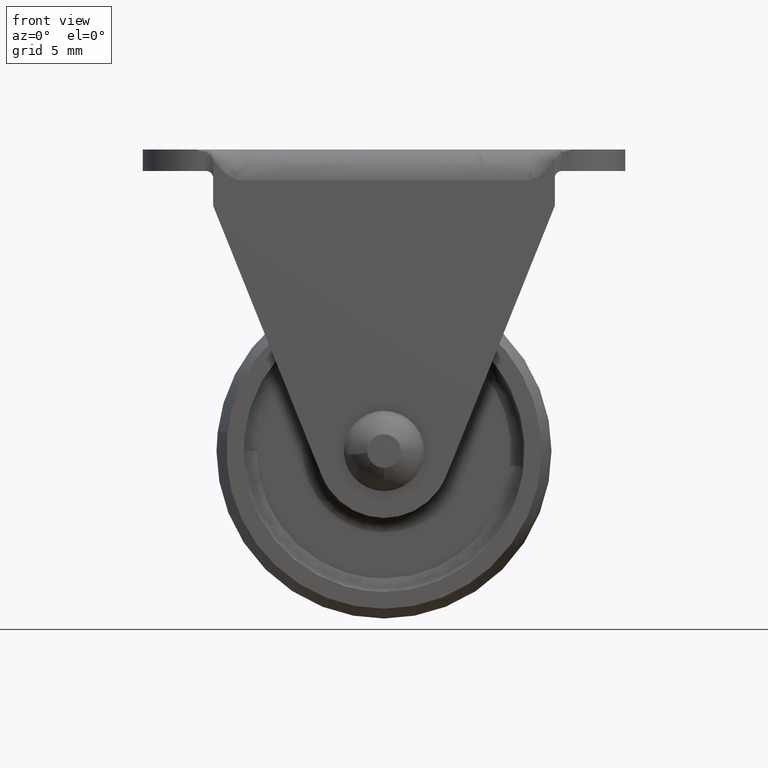
[diagram: clean part render]
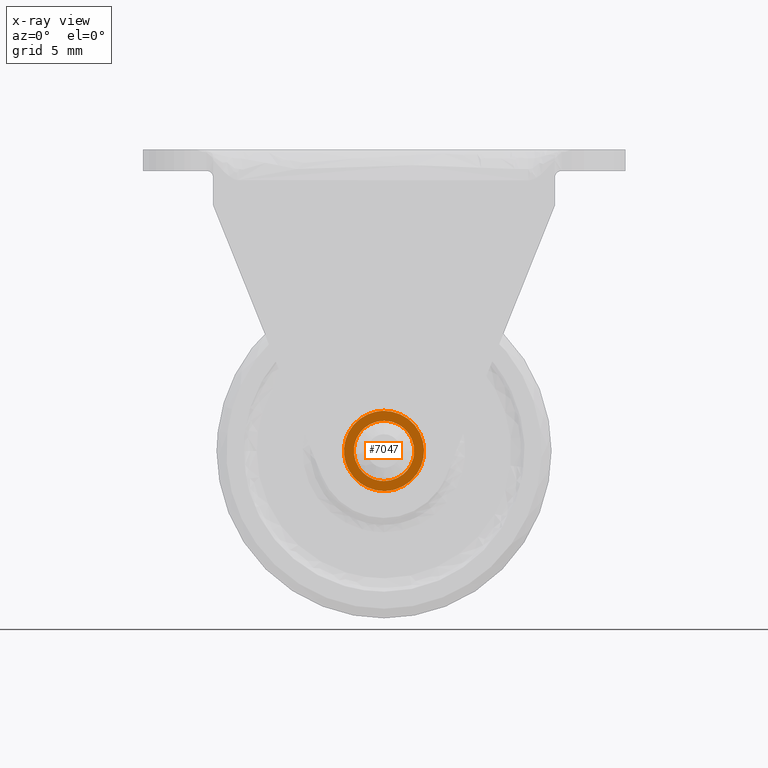
[diagram: x-ray — body ghosted, one internal face saturated and labeled with its STEP entity id]
A machine part, front view, then the same camera in x-ray: the body is ghosted and one INTERNAL B-rep face — a face not visible from any outside direction — is saturated and labeled: STEP entity #7047.
In plain terms, the highlighted face is a freeform B-spline surface patch.
Its self-contained STEP definition (entity closure, byte-faithful):
#6360=CARTESIAN_POINT('',(-2.234271434310410,-9.150002000000001,0.265577028043656));
#6361=VERTEX_POINT('',#6360);
#6362=CARTESIAN_POINT('',(0.0,-9.150002000000001,-2.250000000000000));
#6363=VERTEX_POINT('',#6362);
#6364=CARTESIAN_POINT('',(-2.234271434310410,-9.150002000000001,0.265577028043656));
#6365=CARTESIAN_POINT('',(-2.250000000000000,-9.150002000000001,0.133254269283445));
#6366=CARTESIAN_POINT('',(-2.250000000000000,-9.150002000000001,0.0));
#6367=CARTESIAN_POINT('',(-2.250000000000000,-9.150002000000001,-2.250000000000000));
#6368=CARTESIAN_POINT('',(0.0,-9.150002000000001,-2.250000000000000));
#6376=(BOUNDED_CURVE()B_SPLINE_CURVE(2,(#6364,#6365,#6366,#6367,#6368),.UNSPECIFIED.,.F.,.U.)B_SPLINE_CURVE_WITH_KNOTS((3,2,3),(0.229562473505667,0.250000000000000,0.500000000000000),.UNSPECIFIED.)CURVE()GEOMETRIC_REPRESENTATION_ITEM()RATIONAL_B_SPLINE_CURVE((0.956026754168330,0.976055948321959,1.0,0.707106781186547,1.0))REPRESENTATION_ITEM(''));
#6377=EDGE_CURVE('',#6361,#6363,#6376,.T.);
#6418=CARTESIAN_POINT('',(2.245803418097605,-9.150002000000008,-0.137357224990687));
#6419=VERTEX_POINT('',#6418);
#6425=CARTESIAN_POINT('',(0.0,-9.150002000000001,-2.250000000000000));
#6426=CARTESIAN_POINT('',(2.116590528567082,-9.150002000000002,-2.250000000000000));
#6427=CARTESIAN_POINT('',(2.245803418097605,-9.150002000000008,-0.137357224990687));
#6435=(BOUNDED_CURVE()B_SPLINE_CURVE(2,(#6425,#6426,#6427),.UNSPECIFIED.,.F.,.U.)B_SPLINE_CURVE_WITH_KNOTS((3,3),(0.500000000000000,0.739333115055519),.UNSPECIFIED.)CURVE()GEOMETRIC_REPRESENTATION_ITEM()RATIONAL_B_SPLINE_CURVE((1.0,0.719603814250955,0.976072369181948))REPRESENTATION_ITEM(''));
#6436=EDGE_CURVE('',#6363,#6419,#6435,.T.);
#6459=CARTESIAN_POINT('',(0.0,-9.150002000000001,2.250000000000000));
#6460=VERTEX_POINT('',#6459);
#6461=CARTESIAN_POINT('',(0.0,-9.150002000000001,2.250000000000000));
#6462=CARTESIAN_POINT('',(-1.998392683271773,-9.150002000000001,2.250000000000000));
#6463=CARTESIAN_POINT('',(-2.234271434310410,-9.150002000000001,0.265577028043656));
#6471=(BOUNDED_CURVE()B_SPLINE_CURVE(2,(#6461,#6462,#6463),.UNSPECIFIED.,.F.,.U.)B_SPLINE_CURVE_WITH_KNOTS((3,3),(0.0,0.229562473505667),.UNSPECIFIED.)CURVE()GEOMETRIC_REPRESENTATION_ITEM()RATIONAL_B_SPLINE_CURVE((1.0,0.731050832864589,0.956026754168330))REPRESENTATION_ITEM(''));
#6472=EDGE_CURVE('',#6460,#6361,#6471,.T.);
#6474=CARTESIAN_POINT('',(2.245803418097605,-9.150002000000008,-0.137357224990687));
#6475=CARTESIAN_POINT('',(2.250000000000000,-9.150002000000001,-0.068742720152093));
#6476=CARTESIAN_POINT('',(2.250000000000000,-9.150002000000001,0.0));
#6477=CARTESIAN_POINT('',(2.250000000000000,-9.150002000000001,2.250000000000000));
#6478=CARTESIAN_POINT('',(0.0,-9.150002000000001,2.250000000000000));
#6486=(BOUNDED_CURVE()B_SPLINE_CURVE(2,(#6474,#6475,#6476,#6477,#6478),.UNSPECIFIED.,.F.,.U.)B_SPLINE_CURVE_WITH_KNOTS((3,2,3),(0.739333115055519,0.750000000000000,1.0),.UNSPECIFIED.)CURVE()GEOMETRIC_REPRESENTATION_ITEM()RATIONAL_B_SPLINE_CURVE((0.976072369181948,0.987502966935592,1.0,0.707106781186547,1.0))REPRESENTATION_ITEM(''));
#6487=EDGE_CURVE('',#6419,#6460,#6486,.T.);
#6766=CARTESIAN_POINT('',(0.0,-9.150002000006714,-2.991828621563486));
#6767=VERTEX_POINT('',#6766);
#6781=CARTESIAN_POINT('',(0.0,-9.150002000000001,2.991828621566933));
#6782=VERTEX_POINT('',#6781);
#6783=CARTESIAN_POINT('',(0.0,-9.150002000000001,2.991828621566933));
#6784=CARTESIAN_POINT('',(2.991828621566929,-9.150002000000002,2.991828621566932));
#6785=CARTESIAN_POINT('',(2.991828621566930,-9.150002000000001,2.418598E-015));
#6786=CARTESIAN_POINT('',(2.991828621566929,-9.150002000000002,-2.991828621566928));
#6787=CARTESIAN_POINT('',(0.0,-9.150002000006714,-2.991828621563486));
#6795=(BOUNDED_CURVE()B_SPLINE_CURVE(2,(#6783,#6784,#6785,#6786,#6787),.UNSPECIFIED.,.F.,.U.)B_SPLINE_CURVE_WITH_KNOTS((3,2,3),(0.0,0.250000000000000,0.500000000000000),.UNSPECIFIED.)CURVE()GEOMETRIC_REPRESENTATION_ITEM()RATIONAL_B_SPLINE_CURVE((1.0,0.707106781186548,1.0,0.707106781186548,1.0))REPRESENTATION_ITEM(''));
#6796=EDGE_CURVE('',#6782,#6767,#6795,.T.);
#6798=CARTESIAN_POINT('',(-2.971818191050077,-9.150001999990106,-0.345449186134890));
#6799=VERTEX_POINT('',#6798);
#6800=CARTESIAN_POINT('',(-2.971818191050077,-9.150001999990106,-0.345449186134889));
#6801=CARTESIAN_POINT('',(-2.991828621566930,-9.150002000000001,-0.173304153490091));
#6802=CARTESIAN_POINT('',(-2.991828621566930,-9.150002000000001,2.418598E-015));
#6803=CARTESIAN_POINT('',(-2.991828621566929,-9.150002000000002,2.991828621566932));
#6804=CARTESIAN_POINT('',(0.0,-9.150002000000001,2.991828621566933));
#6812=(BOUNDED_CURVE()B_SPLINE_CURVE(2,(#6800,#6801,#6802,#6803,#6804),.UNSPECIFIED.,.F.,.U.)B_SPLINE_CURVE_WITH_KNOTS((3,2,3),(0.729999999992441,0.750000000000000,1.0),.UNSPECIFIED.)CURVE()GEOMETRIC_REPRESENTATION_ITEM()RATIONAL_B_SPLINE_CURVE((0.956886118175782,0.976568542486068,1.0,0.707106781186548,1.0))REPRESENTATION_ITEM(''));
#6813=EDGE_CURVE('',#6799,#6782,#6812,.T.);
#6862=CARTESIAN_POINT('',(0.0,-9.150002000006714,-2.991828621563486));
#6863=CARTESIAN_POINT('',(-2.664198557682004,-9.150002000000001,-2.991828621566927));
#6864=CARTESIAN_POINT('',(-2.971818191050078,-9.150001999990106,-0.345449186134890));
#6872=(BOUNDED_CURVE()B_SPLINE_CURVE(2,(#6862,#6863,#6864),.UNSPECIFIED.,.F.,.U.)B_SPLINE_CURVE_WITH_KNOTS((3,3),(0.500000000000000,0.729999999992441),.UNSPECIFIED.)CURVE()GEOMETRIC_REPRESENTATION_ITEM()RATIONAL_B_SPLINE_CURVE((1.0,0.730538238700480,0.956886118175781))REPRESENTATION_ITEM(''));
#6873=EDGE_CURVE('',#6767,#6799,#6872,.T.);
#7031=CARTESIAN_POINT('',(-3.290695335712926,-9.150002000000001,3.290712345434101));
#7032=CARTESIAN_POINT('',(-3.290695335712926,-9.150002000000001,-3.290712452426785));
#7033=CARTESIAN_POINT('',(3.290711643178163,-9.150002000000001,3.290712345434101));
#7034=CARTESIAN_POINT('',(3.290711643178163,-9.150002000000001,-3.290712452426785));
#7035=B_SPLINE_SURFACE_WITH_KNOTS('',1,1,((#7031,#7033),(#7032,#7034)),.UNSPECIFIED.,.F.,.F.,.U.,(2,2),(2,2),(0.0,6.581424797860886),(0.0,6.581406978891089),.UNSPECIFIED.);
#7036=ORIENTED_EDGE('',*,*,#6796,.T.);
#7037=ORIENTED_EDGE('',*,*,#6873,.T.);
#7038=ORIENTED_EDGE('',*,*,#6813,.T.);
#7039=EDGE_LOOP('',(#7036,#7037,#7038));
#7040=FACE_OUTER_BOUND('',#7039,.T.);
#7041=ORIENTED_EDGE('',*,*,#6436,.T.);
#7042=ORIENTED_EDGE('',*,*,#6487,.T.);
#7043=ORIENTED_EDGE('',*,*,#6472,.T.);
#7044=ORIENTED_EDGE('',*,*,#6377,.T.);
#7045=EDGE_LOOP('',(#7041,#7042,#7043,#7044));
#7046=FACE_BOUND('',#7045,.T.);
#7047=ADVANCED_FACE('',(#7040,#7046),#7035,.F.);